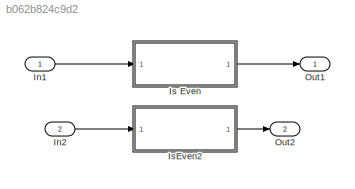
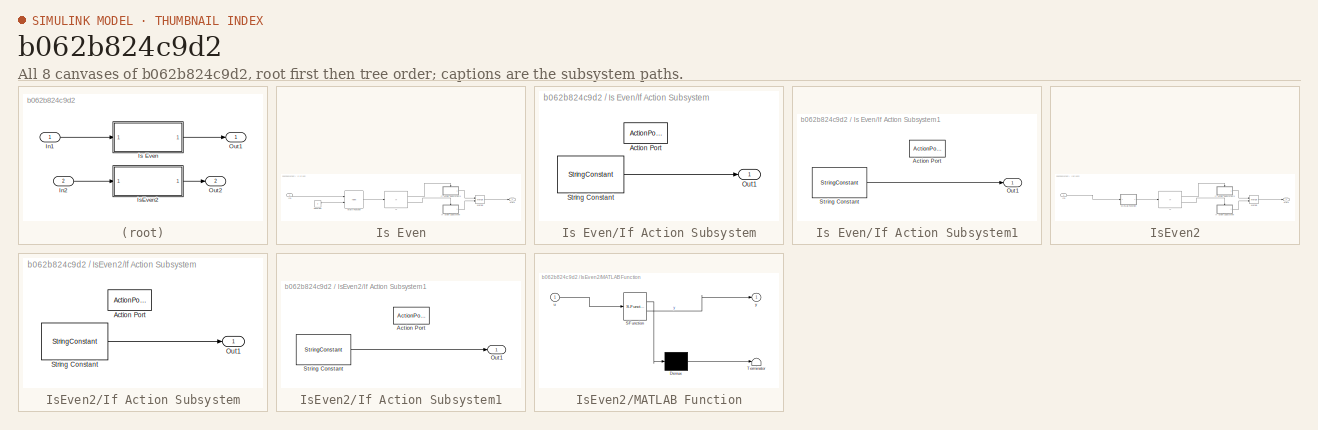
[diagram: thumbnail index - all 8 canvases of the model, root first then tree order]
MODEL slx_b062b824c9d2
KIND model
CONFIG AbsTol = auto
CONFIG EnableMultiTasking = off
CONFIG FixedStep = auto
CONFIG MaxStep = auto
CONFIG MinStep = auto
CONFIG RelTol = 1e-3
CONFIG SampleTimeConstraint = Unconstrained
CONFIG SolverName = VariableStepAuto
CONFIG StartTime = 0.0
CONFIG StopTime = 10.0
BLOCK [Inport] In1
BLOCK [Inport] In2
  Port = 2
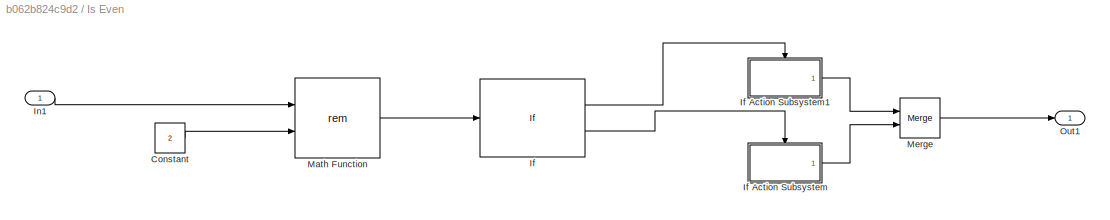
BLOCK [SubSystem] Is Even
  Ports = [1, 1]
  RequestExecContextInheritance = off
BLOCK [Constant] Is Even/Constant
  Value = 2
BLOCK [If] Is Even/If
  IfExpression = u1 == 0
  Ports = [1, 2]
BLOCK [SubSystem] Is Even/If Action Subsystem
  Ports = [0, 1, 0, 0, 0, 0, 0, 1]
  RequestExecContextInheritance = off
  TreatAsAtomicUnit = on
BLOCK [ActionPort] Is Even/If Action Subsystem/Action Port
  ActionPortLabel = else
BLOCK [Outport] Is Even/If Action Subsystem/Out1
BLOCK [StringConstant] Is Even/If Action Subsystem/String Constant
  String = "odd"
BLOCK [SubSystem] Is Even/If Action Subsystem1
  Ports = [0, 1, 0, 0, 0, 0, 0, 1]
  RequestExecContextInheritance = off
  TreatAsAtomicUnit = on
BLOCK [ActionPort] Is Even/If Action Subsystem1/Action Port
  ActionPortLabel = if(u1 == 0)
BLOCK [Outport] Is Even/If Action Subsystem1/Out1
BLOCK [StringConstant] Is Even/If Action Subsystem1/String Constant
  String = "Even"
BLOCK [Inport] Is Even/In1
BLOCK [Math] Is Even/Math Function
  Operator = rem
  Ports = [2, 1]
BLOCK [Merge] Is Even/Merge
  Ports = [2, 1]
BLOCK [Outport] Is Even/Out1
BLOCK [SubSystem] IsEven2
  Ports = [1, 1]
  RequestExecContextInheritance = off
BLOCK [If] IsEven2/If
  IfExpression = u1 == 0
  Ports = [1, 2]
BLOCK [SubSystem] IsEven2/If Action Subsystem
  Ports = [0, 1, 0, 0, 0, 0, 0, 1]
  RequestExecContextInheritance = off
  TreatAsAtomicUnit = on
BLOCK [ActionPort] IsEven2/If Action Subsystem/Action Port
  ActionPortLabel = else
BLOCK [Outport] IsEven2/If Action Subsystem/Out1
BLOCK [StringConstant] IsEven2/If Action Subsystem/String Constant
  String = "odd"
BLOCK [SubSystem] IsEven2/If Action Subsystem1
  Ports = [0, 1, 0, 0, 0, 0, 0, 1]
  RequestExecContextInheritance = off
  TreatAsAtomicUnit = on
BLOCK [ActionPort] IsEven2/If Action Subsystem1/Action Port
  ActionPortLabel = if(u1 == 0)
BLOCK [Outport] IsEven2/If Action Subsystem1/Out1
BLOCK [StringConstant] IsEven2/If Action Subsystem1/String Constant
  String = "Even"
BLOCK [Inport] IsEven2/In1
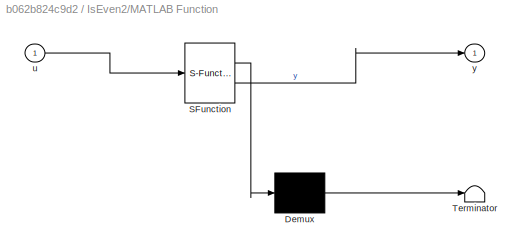
BLOCK [SubSystem] IsEven2/MATLAB Function
  ErrorFcn = Stateflow.Translate.translate
  PermitHierarchicalResolution = ExplicitOnly
  Ports = [1, 1]
  RequestExecContextInheritance = off
  SFBlockType = MATLAB Function
  TreatAsAtomicUnit = on
BLOCK [Demux] IsEven2/MATLAB Function/ Demux 
  Outputs = 1
  Ports = [1, 1]
BLOCK [S-Function] IsEven2/MATLAB Function/ SFunction 
  EnableBusSupport = on
  FunctionName = sf_sfun
  PortCounts = [1 2]
  Ports = [1, 2]
  SFcnIsStateOwnerBlock = off
  SFunctionDeploymentMode = off
  Tag = Stateflow S-Function 2
BLOCK [Terminator] IsEven2/MATLAB Function/ Terminator 
BLOCK [Inport] IsEven2/MATLAB Function/u
BLOCK [Outport] IsEven2/MATLAB Function/y
BLOCK [Merge] IsEven2/Merge
  Ports = [2, 1]
BLOCK [Outport] IsEven2/Out1
BLOCK [Outport] Out1
BLOCK [Outport] Out2
  Port = 2
LINE In1:1 -> Is Even:1
LINE In2:1 -> IsEven2:1
LINE Is Even/Constant:1 -> Is Even/Math Function:2
LINE Is Even/If Action Subsystem/String Constant:1 -> Is Even/If Action Subsystem/Out1:1
LINE Is Even/If Action Subsystem1/String Constant:1 -> Is Even/If Action Subsystem1/Out1:1
LINE Is Even/If Action Subsystem1:1 -> Is Even/Merge:1
LINE Is Even/If Action Subsystem:1 -> Is Even/Merge:2
LINE Is Even/If:1 -> Is Even/If Action Subsystem1:ifaction
LINE Is Even/If:2 -> Is Even/If Action Subsystem:ifaction
LINE Is Even/In1:1 -> Is Even/Math Function:1
LINE Is Even/Math Function:1 -> Is Even/If:1
LINE Is Even/Merge:1 -> Is Even/Out1:1
LINE Is Even:1 -> Out1:1
LINE IsEven2/If Action Subsystem/String Constant:1 -> IsEven2/If Action Subsystem/Out1:1
LINE IsEven2/If Action Subsystem1/String Constant:1 -> IsEven2/If Action Subsystem1/Out1:1
LINE IsEven2/If Action Subsystem1:1 -> IsEven2/Merge:1
LINE IsEven2/If Action Subsystem:1 -> IsEven2/Merge:2
LINE IsEven2/If:1 -> IsEven2/If Action Subsystem1:ifaction
LINE IsEven2/If:2 -> IsEven2/If Action Subsystem:ifaction
LINE IsEven2/In1:1 -> IsEven2/MATLAB Function:1
LINE IsEven2/MATLAB Function:1 -> IsEven2/If:1
LINE IsEven2/Merge:1 -> IsEven2/Out1:1
LINE IsEven2:1 -> Out2:1
CHART IsEven2/MATLAB Function states=1 transitions=1
  STATE_LABEL 'eML_blk_kernel()'
  STATE_LABEL 'SCRIPT:\nfunction y = fcn(u)\n\ny = u%2;\nend'
CHART  states=0 transitions=0
